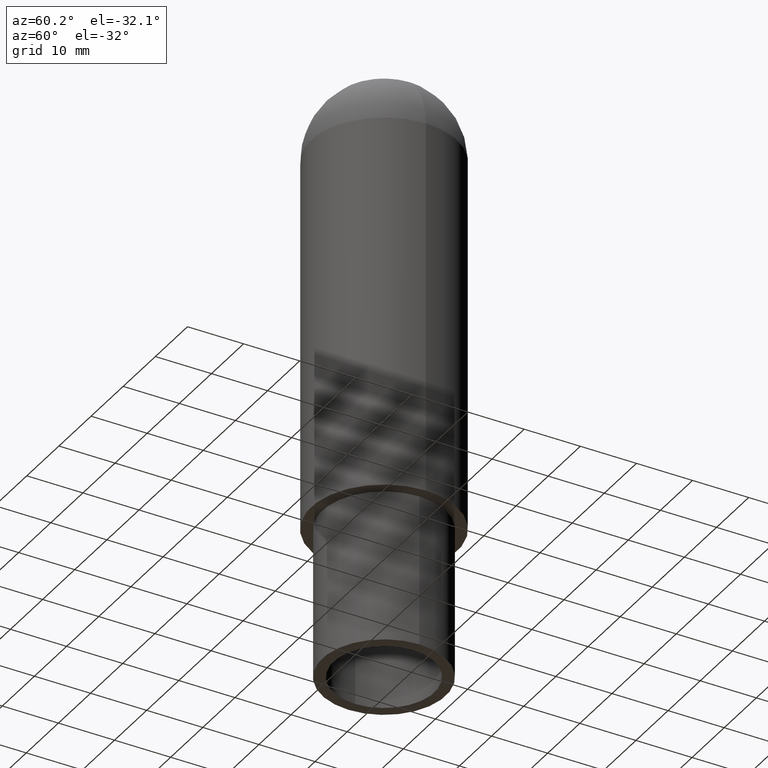
[diagram: clean part render]
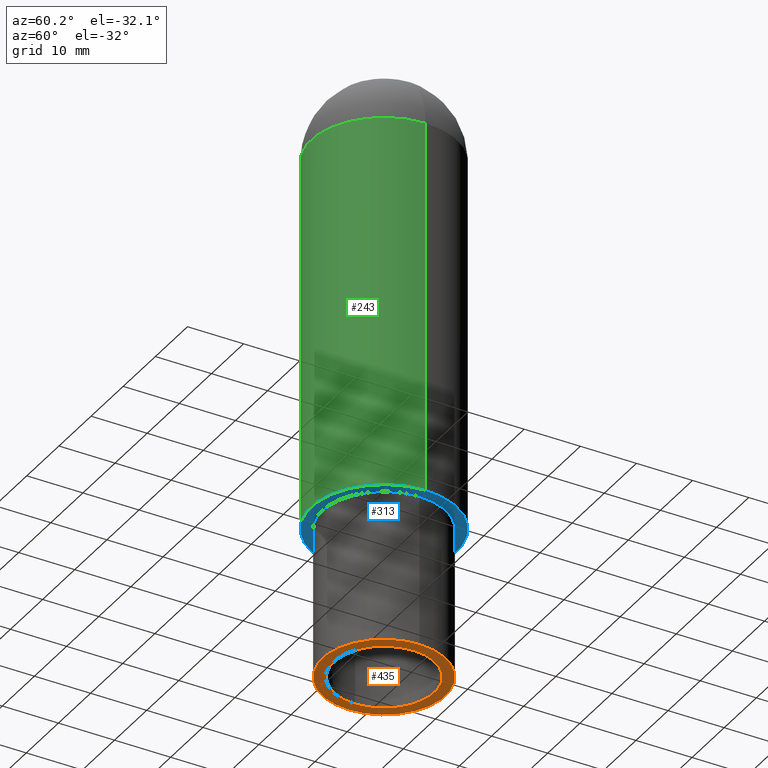
[diagram: same view with three faces highlighted in distinct colors, each labeled with its STEP entity id]
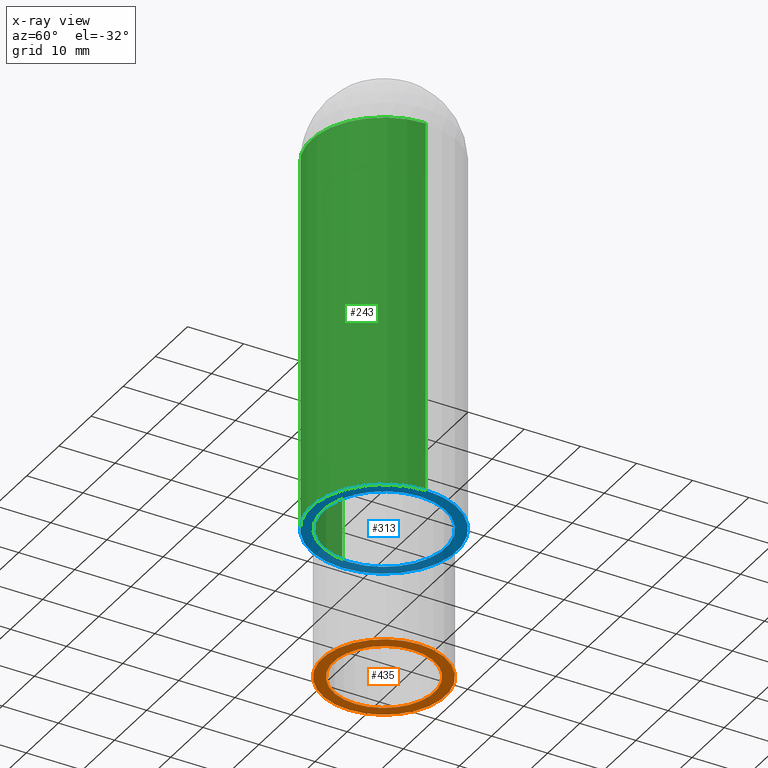
[diagram: x-ray of the same camera — body ghosted, the three highlighted faces saturated]
A machine part, auxiliary view with three faces highlighted in distinct colors.
The next image is the same camera in x-ray (body ghosted, the three faces saturated) — at least one of them is partly hidden behind the body in this view.
Their STEP definitions:

[orange] entity #435 — the highlighted planar face has unit normal (0, 0, -1).
#49=CARTESIAN_POINT('',(-6.716946060098080,-1.613904443833870,0.0));
#50=VERTEX_POINT('',#49);
#59=CARTESIAN_POINT('',(15.283053939901921,-1.613904443833870,0.0));
#60=VERTEX_POINT('',#59);
#61=CARTESIAN_POINT('',(4.283053939901920,-1.613904443833871,0.0));
#62=DIRECTION('',(0.0,0.0,-1.0));
#63=DIRECTION('',(-1.0,0.0,0.0));
#64=AXIS2_PLACEMENT_3D('',#61,#62,#63);
#65=CIRCLE('',#64,11.0);
#66=EDGE_CURVE('',#60,#50,#65,.T.);
#93=CARTESIAN_POINT('',(-4.716946060098080,-1.613904443833870,0.0));
#94=VERTEX_POINT('',#93);
#110=CARTESIAN_POINT('',(13.283053939901919,-1.613904443833870,0.0));
#111=VERTEX_POINT('',#110);
#118=CARTESIAN_POINT('',(4.283053939901920,-1.613904443833871,0.0));
#119=DIRECTION('',(0.0,0.0,1.0));
#120=DIRECTION('',(-1.0,0.0,0.0));
#121=AXIS2_PLACEMENT_3D('',#118,#119,#120);
#122=CIRCLE('',#121,9.0);
#123=EDGE_CURVE('',#94,#111,#122,.T.);
#392=CARTESIAN_POINT('',(4.283053939901920,-1.613904443833871,0.0));
#393=DIRECTION('',(0.0,0.0,1.0));
#394=DIRECTION('',(-1.0,0.0,0.0));
#395=AXIS2_PLACEMENT_3D('',#392,#393,#394);
#396=CIRCLE('',#395,9.0);
#397=EDGE_CURVE('',#111,#94,#396,.T.);
#412=CARTESIAN_POINT('',(4.283053939901920,-1.613904443833871,0.0));
#413=DIRECTION('',(0.0,0.0,-1.0));
#414=DIRECTION('',(-1.0,0.0,0.0));
#415=AXIS2_PLACEMENT_3D('',#412,#413,#414);
#416=CIRCLE('',#415,11.0);
#417=EDGE_CURVE('',#50,#60,#416,.T.);
#422=CARTESIAN_POINT('',(4.283053939901920,-1.613904443833871,0.0));
#423=DIRECTION('',(0.0,0.0,-1.0));
#424=DIRECTION('',(-1.0,0.0,0.0));
#425=AXIS2_PLACEMENT_3D('',#422,#423,#424);
#426=PLANE('',#425);
#427=ORIENTED_EDGE('',*,*,#66,.T.);
#428=ORIENTED_EDGE('',*,*,#417,.T.);
#429=EDGE_LOOP('',(#427,#428));
#430=FACE_OUTER_BOUND('',#429,.T.);
#431=ORIENTED_EDGE('',*,*,#397,.T.);
#432=ORIENTED_EDGE('',*,*,#123,.T.);
#433=EDGE_LOOP('',(#431,#432));
#434=FACE_BOUND('',#433,.T.);
#435=ADVANCED_FACE('',(#430,#434),#426,.T.);

[blue] entity #313 — the highlighted planar face has unit normal (0, 0, -1).
#51=CARTESIAN_POINT('',(-6.716946060098080,-1.613904443833870,27.0));
#52=VERTEX_POINT('',#51);
#68=CARTESIAN_POINT('',(15.283053939901921,-1.613904443833868,27.0));
#69=VERTEX_POINT('',#68);
#76=CARTESIAN_POINT('',(4.283053939901920,-1.613904443833871,27.0));
#77=DIRECTION('',(0.0,0.0,-1.0));
#78=DIRECTION('',(-1.0,0.0,0.0));
#79=AXIS2_PLACEMENT_3D('',#76,#77,#78);
#80=CIRCLE('',#79,11.0);
#81=EDGE_CURVE('',#69,#52,#80,.T.);
#207=CARTESIAN_POINT('',(-8.716946060098080,-1.613904443833868,27.0));
#208=VERTEX_POINT('',#207);
#217=CARTESIAN_POINT('',(17.283053939901922,-1.613904443833868,27.0));
#218=VERTEX_POINT('',#217);
#219=CARTESIAN_POINT('',(4.283053939901921,-1.613904443833869,27.0));
#220=DIRECTION('',(0.0,0.0,-1.0));
#221=DIRECTION('',(-1.0,0.0,0.0));
#222=AXIS2_PLACEMENT_3D('',#219,#220,#221);
#223=CIRCLE('',#222,13.0);
#224=EDGE_CURVE('',#218,#208,#223,.T.);
#284=CARTESIAN_POINT('',(4.283053939901921,-1.613904443833869,27.0));
#285=DIRECTION('',(0.0,0.0,-1.0));
#286=DIRECTION('',(-1.0,0.0,0.0));
#287=AXIS2_PLACEMENT_3D('',#284,#285,#286);
#288=CIRCLE('',#287,13.0);
#289=EDGE_CURVE('',#208,#218,#288,.T.);
#294=CARTESIAN_POINT('',(4.283053939901921,-1.613904443833869,27.0));
#295=DIRECTION('',(0.0,0.0,-1.0));
#296=DIRECTION('',(-1.0,0.0,0.0));
#297=AXIS2_PLACEMENT_3D('',#294,#295,#296);
#298=PLANE('',#297);
#299=ORIENTED_EDGE('',*,*,#224,.T.);
#300=ORIENTED_EDGE('',*,*,#289,.T.);
#301=EDGE_LOOP('',(#299,#300));
#302=FACE_OUTER_BOUND('',#301,.T.);
#303=ORIENTED_EDGE('',*,*,#81,.F.);
#304=CARTESIAN_POINT('',(4.283053939901920,-1.613904443833871,27.0));
#305=DIRECTION('',(0.0,0.0,-1.0));
#306=DIRECTION('',(-1.0,0.0,0.0));
#307=AXIS2_PLACEMENT_3D('',#304,#305,#306);
#308=CIRCLE('',#307,11.0);
#309=EDGE_CURVE('',#52,#69,#308,.T.);
#310=ORIENTED_EDGE('',*,*,#309,.F.);
#311=EDGE_LOOP('',(#303,#310));
#312=FACE_BOUND('',#311,.T.);
#313=ADVANCED_FACE('',(#302,#312),#298,.T.);

[green] entity #243 — the highlighted cylindrical surface (partial cylindrical patch) has radius 13 mm, axis along (0, 0, 1).
#202=CARTESIAN_POINT('',(4.283053939901921,-1.613904443833869,27.0));
#203=DIRECTION('',(0.0,0.0,1.0));
#204=DIRECTION('',(-1.0,0.0,0.0));
#205=AXIS2_PLACEMENT_3D('',#202,#203,#204);
#206=CYLINDRICAL_SURFACE('',#205,13.0);
#207=CARTESIAN_POINT('',(-8.716946060098080,-1.613904443833868,27.0));
#208=VERTEX_POINT('',#207);
#209=CARTESIAN_POINT('',(-8.716946060098078,-1.613904443833868,94.0));
#210=VERTEX_POINT('',#209);
#211=CARTESIAN_POINT('',(-8.716946060098080,-1.613904443833868,27.0));
#212=DIRECTION('',(0.0,0.0,1.0));
#213=VECTOR('',#212,67.0);
#214=LINE('',#211,#213);
#215=EDGE_CURVE('',#208,#210,#214,.T.);
#216=ORIENTED_EDGE('',*,*,#215,.F.);
#217=CARTESIAN_POINT('',(17.283053939901922,-1.613904443833868,27.0));
#218=VERTEX_POINT('',#217);
#219=CARTESIAN_POINT('',(4.283053939901921,-1.613904443833869,27.0));
#220=DIRECTION('',(0.0,0.0,-1.0));
#221=DIRECTION('',(-1.0,0.0,0.0));
#222=AXIS2_PLACEMENT_3D('',#219,#220,#221);
#223=CIRCLE('',#222,13.0);
#224=EDGE_CURVE('',#218,#208,#223,.T.);
#225=ORIENTED_EDGE('',*,*,#224,.F.);
#226=CARTESIAN_POINT('',(17.283053939901919,-1.613904443833868,94.0));
#227=VERTEX_POINT('',#226);
#228=CARTESIAN_POINT('',(17.283053939901919,-1.613904443833868,94.0));
#229=DIRECTION('',(0.0,0.0,-1.0));
#230=VECTOR('',#229,67.0);
#231=LINE('',#228,#230);
#232=EDGE_CURVE('',#227,#218,#231,.T.);
#233=ORIENTED_EDGE('',*,*,#232,.F.);
#234=CARTESIAN_POINT('',(4.283053939901921,-1.613904443833869,94.0));
#235=DIRECTION('',(0.0,0.0,1.0));
#236=DIRECTION('',(-1.0,0.0,0.0));
#237=AXIS2_PLACEMENT_3D('',#234,#235,#236);
#238=CIRCLE('',#237,12.999999999999998);
#239=EDGE_CURVE('',#210,#227,#238,.T.);
#240=ORIENTED_EDGE('',*,*,#239,.F.);
#241=EDGE_LOOP('',(#216,#225,#233,#240));
#242=FACE_OUTER_BOUND('',#241,.T.);
#243=ADVANCED_FACE('',(#242),#206,.T.);